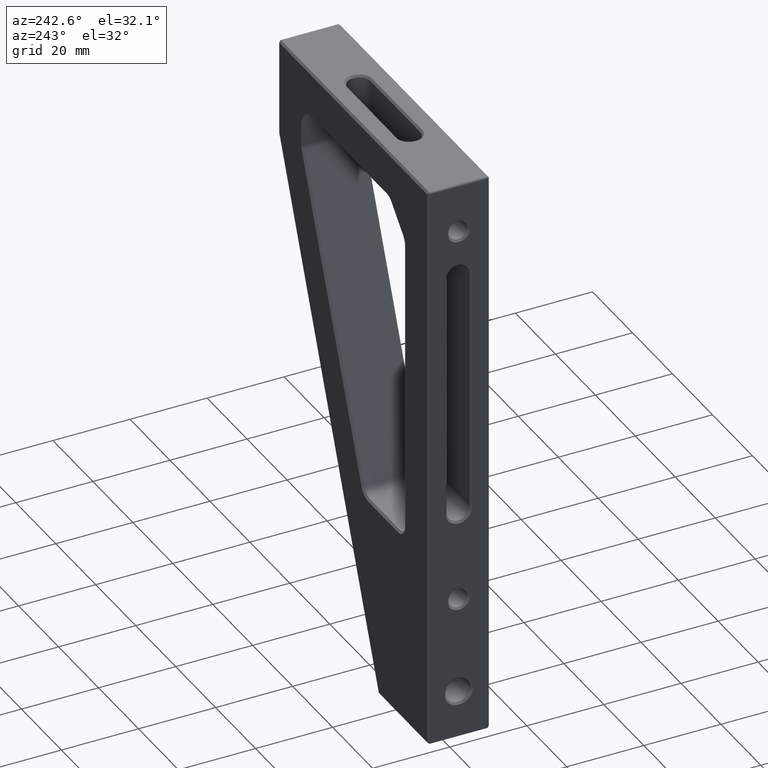
[diagram: clean part render]
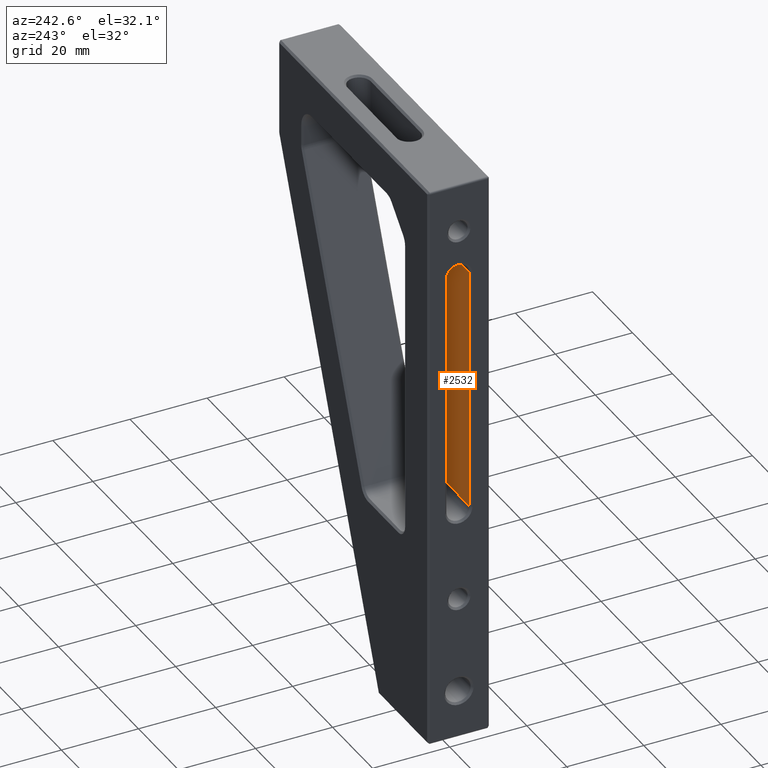
[diagram: same view with one face highlighted and labeled with its STEP entity id]
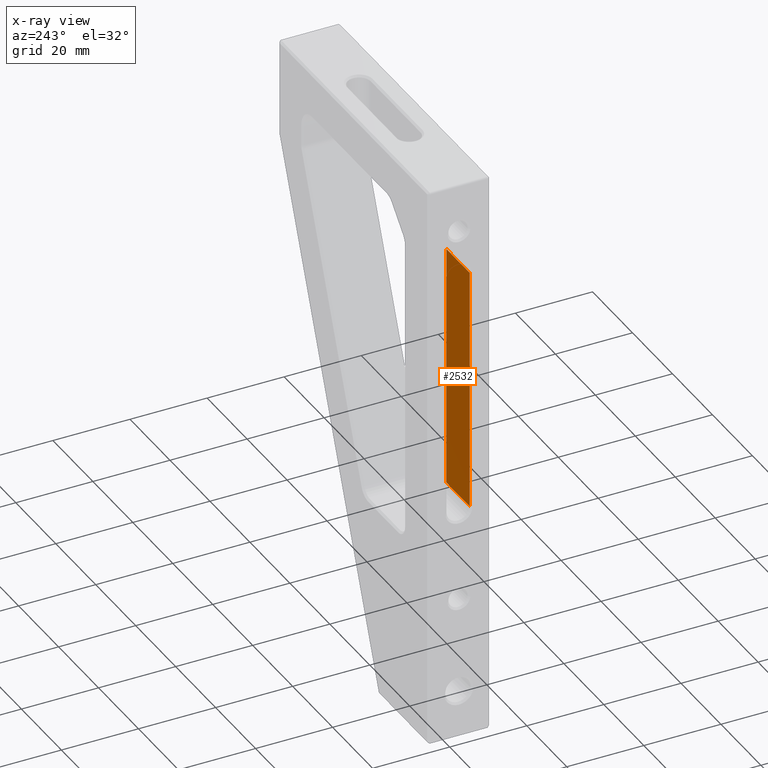
[diagram: x-ray of the same camera — body ghosted, the highlighted face saturated]
A machine part, auxiliary view. The second image highlights one B-rep face of the part: STEP entity #2532.
The next image is the same camera in x-ray: the body ghosted, the highlighted face saturated — about 0% of this face is hidden behind the body in this view.
In plain terms, the highlighted planar face has unit normal (0, -1, 0).
Its self-contained STEP definition (entity closure, byte-faithful):
#115 = CARTESIAN_POINT ( 'NONE',  ( -40.08705027803263476, -5.083758937629926145, 199.9999999999999716 ) ) ;
#131 = ORIENTED_EDGE ( 'NONE', *, *, #1649, .F. ) ;
#201 = VERTEX_POINT ( 'NONE', #1346 ) ;
#205 = FACE_OUTER_BOUND ( 'NONE', #2218, .T. ) ;
#222 = DIRECTION ( 'NONE',  ( 0.000000000000000000, -1.000000000000000000, 0.000000000000000000 ) ) ;
#465 = CARTESIAN_POINT ( 'NONE',  ( 34.41394972193851487, -5.083758937690479485, 136.4999999999999716 ) ) ;
#632 = LINE ( 'NONE', #1129, #1747 ) ;
#959 = VERTEX_POINT ( 'NONE', #2589 ) ;
#1008 = DIRECTION ( 'NONE',  ( 0.000000000000000000, -0.000000000000000000, -1.000000000000000000 ) ) ;
#1044 = VECTOR ( 'NONE', #2106, 1000.000000000000000 ) ;
#1086 = LINE ( 'NONE', #1335, #2141 ) ;
#1129 = CARTESIAN_POINT ( 'NONE',  ( 34.41394972193851487, -5.083758937690479485, 199.9999999999999716 ) ) ;
#1139 = LINE ( 'NONE', #1841, #1044 ) ;
#1335 = CARTESIAN_POINT ( 'NONE',  ( -28.58705027806151477, -5.083758937690479485, 124.9999999999999858 ) ) ;
#1346 = CARTESIAN_POINT ( 'NONE',  ( -28.58705027806151477, -5.083758937690481261, 136.4999999999999716 ) ) ;
#1367 = CARTESIAN_POINT ( 'NONE',  ( 34.41394972193851487, -5.083758937690482149, 136.4999999999999716 ) ) ;
#1649 = EDGE_CURVE ( 'NONE', #2654, #2752, #632, .T. ) ;
#1747 = VECTOR ( 'NONE', #2144, 1000.000000000000000 ) ;
#1750 = AXIS2_PLACEMENT_3D ( 'NONE', #465, #222, #1008 ) ;
#1841 = CARTESIAN_POINT ( 'NONE',  ( -40.08705027806153964, -5.083758937690479485, 136.4999999999999716 ) ) ;
#1893 = LINE ( 'NONE', #1367, #3093 ) ;
#2004 = ORIENTED_EDGE ( 'NONE', *, *, #2797, .T. ) ;
#2106 = DIRECTION ( 'NONE',  ( 9.251858538542908719E-17, -9.251858538542971581E-17, 1.000000000000000000 ) ) ;
#2141 = VECTOR ( 'NONE', #2802, 1000.000000000000000 ) ;
#2144 = DIRECTION ( 'NONE',  ( -1.000000000000000000, -0.000000000000000000, -0.000000000000000000 ) ) ;
#2218 = EDGE_LOOP ( 'NONE', ( #2867, #131, #2535, #2004 ) ) ;
#2532 = ADVANCED_FACE ( 'NONE', ( #205 ), #2715, .F. ) ;
#2535 = ORIENTED_EDGE ( 'NONE', *, *, #2926, .T. ) ;
#2589 = CARTESIAN_POINT ( 'NONE',  ( -40.08705027804684562, -5.083758937664257793, 136.4999999999999716 ) ) ;
#2654 = VERTEX_POINT ( 'NONE', #2743 ) ;
#2706 = EDGE_CURVE ( 'NONE', #959, #2752, #1139, .T. ) ;
#2715 = PLANE ( 'NONE',  #1750 ) ;
#2743 = CARTESIAN_POINT ( 'NONE',  ( -28.58705027806149701, -5.083758937690479485, 199.9999999999999716 ) ) ;
#2752 = VERTEX_POINT ( 'NONE', #115 ) ;
#2797 = EDGE_CURVE ( 'NONE', #201, #959, #1893, .T. ) ;
#2802 = DIRECTION ( 'NONE',  ( -2.154935995002246132E-16, -0.000000000000000000, -1.000000000000000000 ) ) ;
#2867 = ORIENTED_EDGE ( 'NONE', *, *, #2706, .T. ) ;
#2887 = DIRECTION ( 'NONE',  ( -1.000000000000000000, 0.000000000000000000, 9.251858538542971581E-17 ) ) ;
#2926 = EDGE_CURVE ( 'NONE', #2654, #201, #1086, .T. ) ;
#3093 = VECTOR ( 'NONE', #2887, 1000.000000000000000 ) ;